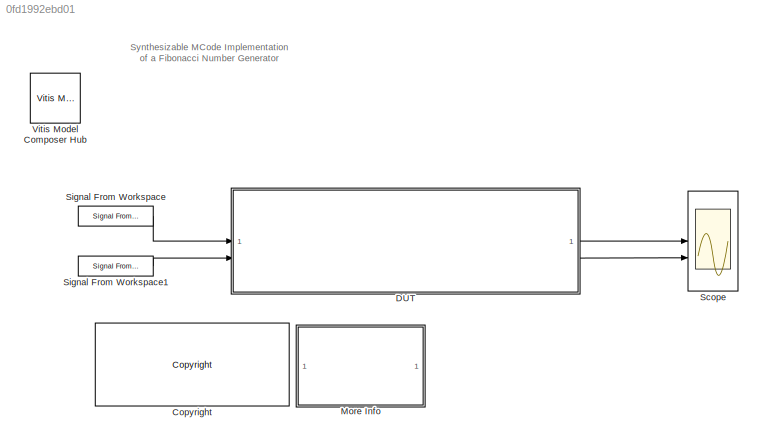
MODEL slx_0fd1992ebd01
KIND model
CONFIG AbsTol = auto
CONFIG EnableMultiTasking = on
CONFIG FixedStep = auto
CONFIG MaxStep = 1
CONFIG MinStep = auto
CONFIG RelTol = 1e-3
CONFIG SampleTimeConstraint = Unconstrained
CONFIG SolverName = VariableStepDiscrete
CONFIG StartTime = 0.0
CONFIG StopTime = 34
BLOCK [Reference] <copyright redacted>
  SourceBlock = hdlUtilities/<copyright redacted>
  SourceType = Xilinx <copyright redacted>
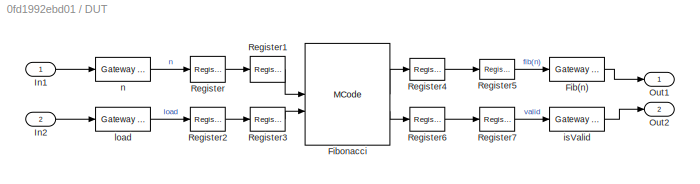
BLOCK [SubSystem] DUT
BLOCK [Reference] DUT/Fib(n)  REF=hdlBasic/Gateway Out
  SourceBlock = hdlBasic/Gateway Out
  SourceType = Gateway Out Block
BLOCK [Reference] DUT/Fibonacci  REF=hdlBasic/MCode
  SourceBlock = hdlBasic/MCode
  SourceType = MCode
BLOCK [Inport] DUT/In1
BLOCK [Inport] DUT/In2
  Port = 2
BLOCK [Outport] DUT/Out1
BLOCK [Outport] DUT/Out2
  Port = 2
BLOCK [Reference] DUT/Register  REF=hdlBasic/Register
  SourceBlock = hdlBasic/Register
  SourceType = Register Block
BLOCK [Reference] DUT/Register1  REF=hdlBasic/Register
  SourceBlock = hdlBasic/Register
  SourceType = Register Block
BLOCK [Reference] DUT/Register2  REF=hdlBasic/Register
  SourceBlock = hdlBasic/Register
  SourceType = Register Block
BLOCK [Reference] DUT/Register3  REF=hdlBasic/Register
  SourceBlock = hdlBasic/Register
  SourceType = Register Block
BLOCK [Reference] DUT/Register4  REF=hdlBasic/Register
  SourceBlock = hdlBasic/Register
  SourceType = Register Block
BLOCK [Reference] DUT/Register5  REF=hdlBasic/Register
  SourceBlock = hdlBasic/Register
  SourceType = Register Block
BLOCK [Reference] DUT/Register6  REF=hdlBasic/Register
  SourceBlock = hdlBasic/Register
  SourceType = Register Block
BLOCK [Reference] DUT/Register7  REF=hdlBasic/Register
  SourceBlock = hdlBasic/Register
  SourceType = Register Block
BLOCK [Reference] DUT/isValid  REF=hdlBasic/Gateway Out
  SourceBlock = hdlBasic/Gateway Out
  SourceType = Gateway Out Block
BLOCK [Reference] DUT/load  REF=hdlBasic/Gateway In
  SourceBlock = hdlBasic/Gateway In
  SourceType = Gateway In Block
BLOCK [Reference] DUT/n  REF=hdlBasic/Gateway In
  SourceBlock = hdlBasic/Gateway In
  SourceType = Gateway In Block
BLOCK [SubSystem] More Info
BLOCK [Scope] Scope
  Floating = off
  NumInputPorts = 2
  ScopeSpecificationString = Simulink.scopes.TimeScopeBlockCfg('CurrentConfiguration', extmgr.ConfigurationSet(extmgr.Configuration('Core','General UI',true),extmgr.Configuration('Core','Source UI',true),extmgr.Configuration('Sources','WiredSimulink',true,'DataLoggingLimitDataPoints',true,'DataLoggingDecimateData',true,'DataLoggingDecimation','1','DataLoggingSaveFormat','Structure With Time'),extmgr.Configuration('Visuals','T...<+2417ch>
BLOCK [Reference] Signal From Workspace  REF=dspsrcs4/Signal From
Workspace
  SourceBlock = dspsrcs4/Signal From\nWorkspace
  SourceType = Signal From Workspace
BLOCK [Reference] Signal From Workspace1  REF=dspsrcs4/Signal From
Workspace
  SourceBlock = dspsrcs4/Signal From\nWorkspace
  SourceType = Signal From Workspace
BLOCK [Reference] Vitis Model Composer Hub  REF=vmcUtilities/Vitis Model Composer Hub
  SourceBlock = vmcUtilities/Vitis Model Composer Hub
  SourceType = VMC Hub
  Tag = genX
  UserDataPersistent = on
ANNOTATION (root): Synthesizable MCode Implementation of a Fibonacci Number Generator
ANNOTATION More Info: MCode-Based Fibonacci Sequence
ANNOTATION More Info: This design implements a Fibonacci number generator in an MCode block. That is, given a non-negative integer n, it computes the recursively defined sequence x_0 = 1, x_1 = 1, ... , n_n = x_{n-2} + x_{n-1}. This design should be compared to sysgenFibonacciLogic which implements the same computation in a more hardware-centric way. The m-code implementing the MCode block is written so as to be as clo...<+461ch>
LINE DUT/Fib(n):1 -> DUT/Out1:1
LINE DUT/Fibonacci:1 -> DUT/Register4:1
LINE DUT/Fibonacci:2 -> DUT/Register6:1
LINE DUT/In1:1 -> DUT/n:1
LINE DUT/In2:1 -> DUT/load:1
LINE DUT/Register1:1 -> DUT/Fibonacci:1
LINE DUT/Register2:1 -> DUT/Register3:1
LINE DUT/Register3:1 -> DUT/Fibonacci:2
LINE DUT/Register4:1 -> DUT/Register5:1
LINE DUT/Register5:1 -> DUT/Fib(n):1
LINE DUT/Register6:1 -> DUT/Register7:1
LINE DUT/Register7:1 -> DUT/isValid:1
LINE DUT/Register:1 -> DUT/Register1:1
LINE DUT/isValid:1 -> DUT/Out2:1
LINE DUT/load:1 -> DUT/Register2:1
LINE DUT/n:1 -> DUT/Register:1
LINE DUT:1 -> Scope:1
LINE DUT:2 -> Scope:2
LINE Signal From Workspace1:1 -> DUT:2
LINE Signal From Workspace:1 -> DUT:1
